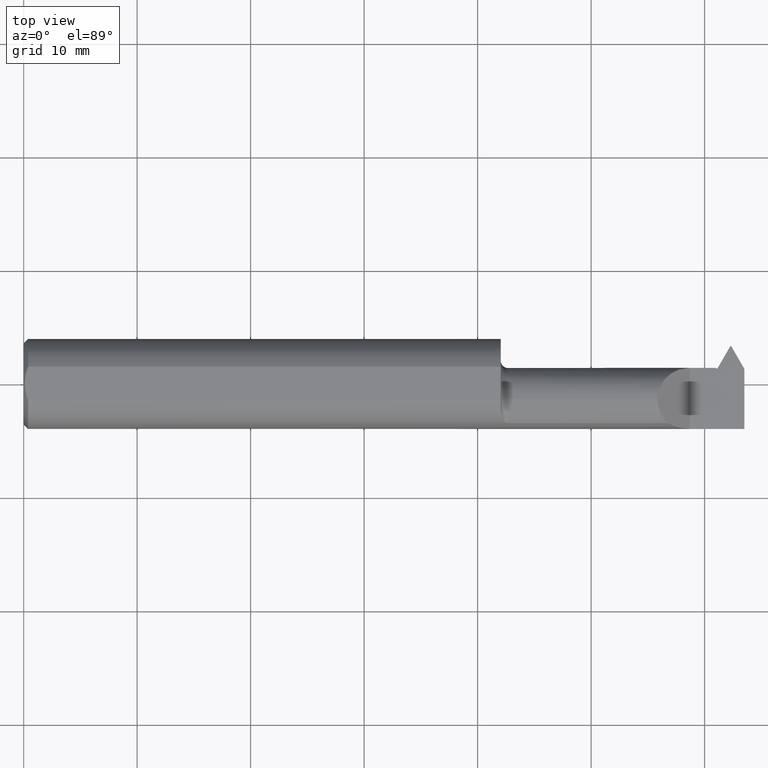
[diagram: clean part render]
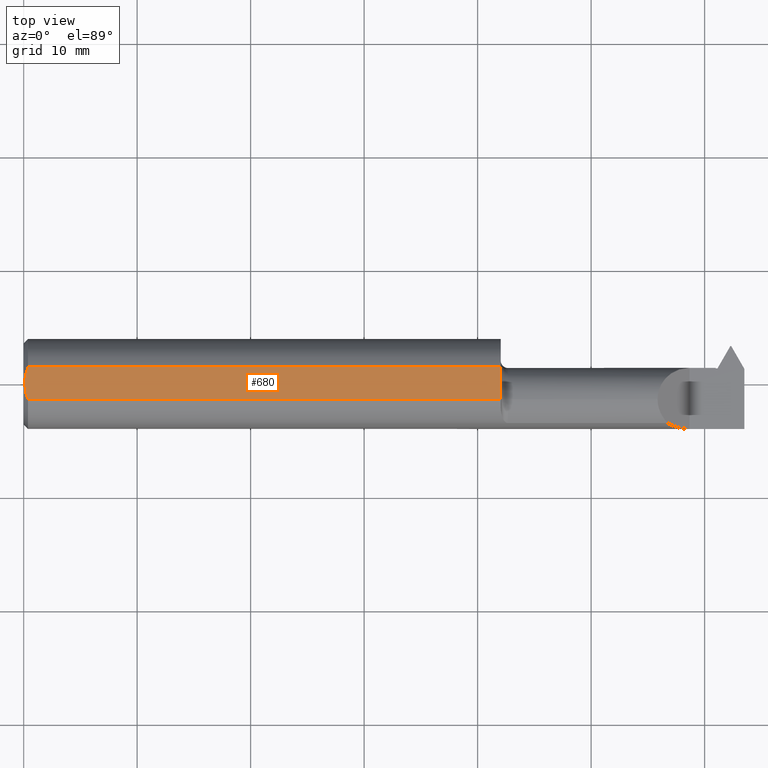
[diagram: same view with one face highlighted and labeled with its STEP entity id]
A machine part, top view. The second image highlights one B-rep face of the part: STEP entity #680.
In plain terms, the highlighted planar face has unit normal (-0, 0, -1).
Its self-contained STEP definition (entity closure, byte-faithful):
#46 = EDGE_CURVE ( 'NONE', #353, #347, #349, .T. ) ;
#56 = CARTESIAN_POINT ( 'NONE',  ( 2.500000000000000000, -0.05756040305626781983, 0.1450999999999999512 ) ) ;
#59 = VERTEX_POINT ( 'NONE', #830 ) ;
#66 = CARTESIAN_POINT ( 'NONE',  ( 0.003999999999999637526, 1.884449684559922719E-17, 0.1450999999999999512 ) ) ;
#81 = ORIENTED_EDGE ( 'NONE', *, *, #824, .F. ) ;
#88 = CARTESIAN_POINT ( 'NONE',  ( 1.655000000000000249, 0.1749999999999999889, 0.1450999999999999512 ) ) ;
#93 = CARTESIAN_POINT ( 'NONE',  ( 0.003999999999999590689, -0.009851916903761231276, 0.1450999999999999235 ) ) ;
#96 = VERTEX_POINT ( 'NONE', #152 ) ;
#118 = LINE ( 'NONE', #419, #439 ) ;
#152 = CARTESIAN_POINT ( 'NONE',  ( 0.01499999999999970281, 0.05756040305626781983, 0.1450999999999999512 ) ) ;
#176 = DIRECTION ( 'NONE',  ( -0.000000000000000000, 0.000000000000000000, -1.000000000000000000 ) ) ;
#189 = ORIENTED_EDGE ( 'NONE', *, *, #271, .T. ) ;
#191 = CARTESIAN_POINT ( 'NONE',  ( 0.003999999999999592423, 0.009855731042683129120, 0.1450999999999999790 ) ) ;
#218 = AXIS2_PLACEMENT_3D ( 'NONE', #488, #176, #479 ) ;
#267 = DIRECTION ( 'NONE',  ( 1.000000000000000000, 0.000000000000000000, 0.000000000000000000 ) ) ;
#271 = EDGE_CURVE ( 'NONE', #96, #353, #385, .T. ) ;
#276 = CARTESIAN_POINT ( 'NONE',  ( 1.655000000000000249, 0.05756040305626781289, 0.1450999999999999512 ) ) ;
#281 = LINE ( 'NONE', #56, #658 ) ;
#299 = DIRECTION ( 'NONE',  ( 0.000000000000000000, -1.000000000000000000, 0.000000000000000000 ) ) ;
#316 = LINE ( 'NONE', #88, #766 ) ;
#347 = VERTEX_POINT ( 'NONE', #705 ) ;
#349 = B_SPLINE_CURVE_WITH_KNOTS ( 'NONE', 3,
 ( #763, #93, #392, #451, #747, #685 ),
 .UNSPECIFIED., .F., .F.,
 ( 4, 2, 4 ),
 ( 0.004640589759741725780, 0.005379751224090827816, 0.006118912688439928985 ),
 .UNSPECIFIED. ) ;
#353 = VERTEX_POINT ( 'NONE', #66 ) ;
#385 = B_SPLINE_CURVE_WITH_KNOTS ( 'NONE', 3,
 ( #412, #565, #400, #857, #191, #494 ),
 .UNSPECIFIED., .F., .F.,
 ( 4, 2, 4 ),
 ( 0.003161694502929457244, 0.003901142131335591512, 0.004640589759741725780 ),
 .UNSPECIFIED. ) ;
#392 = CARTESIAN_POINT ( 'NONE',  ( 0.005011318927232567486, -0.01959047621504285061, 0.1450999999999999512 ) ) ;
#397 = ORIENTED_EDGE ( 'NONE', *, *, #46, .T. ) ;
#400 = CARTESIAN_POINT ( 'NONE',  ( 0.008823987512428013366, 0.03887788046871690911, 0.1450999999999999512 ) ) ;
#401 = VERTEX_POINT ( 'NONE', #276 ) ;
#412 = CARTESIAN_POINT ( 'NONE',  ( 0.01499999999999970281, 0.05756040305626781983, 0.1450999999999999512 ) ) ;
#419 = CARTESIAN_POINT ( 'NONE',  ( 2.500000000000000000, 0.05756040305626781983, 0.1450999999999999512 ) ) ;
#439 = VECTOR ( 'NONE', #267, 39.37007874015748143 ) ;
#451 = CARTESIAN_POINT ( 'NONE',  ( 0.008818052469296599680, -0.03886761757380381710, 0.1450999999999999512 ) ) ;
#479 = DIRECTION ( 'NONE',  ( -1.000000000000000000, 0.000000000000000000, 0.000000000000000000 ) ) ;
#487 = EDGE_CURVE ( 'NONE', #401, #59, #316, .T. ) ;
#488 = CARTESIAN_POINT ( 'NONE',  ( 0.000000000000000000, 0.1749999999999999889, 0.1450999999999999512 ) ) ;
#493 = FACE_OUTER_BOUND ( 'NONE', #605, .T. ) ;
#494 = CARTESIAN_POINT ( 'NONE',  ( 0.003999999999999637526, 1.884449684559922719E-17, 0.1450999999999999512 ) ) ;
#502 = ORIENTED_EDGE ( 'NONE', *, *, #487, .F. ) ;
#565 = CARTESIAN_POINT ( 'NONE',  ( 0.01158831187866349310, 0.04830813087846574927, 0.1450999999999999235 ) ) ;
#605 = EDGE_LOOP ( 'NONE', ( #502, #81, #189, #397, #826 ) ) ;
#658 = VECTOR ( 'NONE', #938, 39.37007874015748143 ) ;
#680 = ADVANCED_FACE ( 'NONE', ( #493 ), #712, .F. ) ;
#685 = CARTESIAN_POINT ( 'NONE',  ( 0.01499999999999970975, -0.05756040305626781983, 0.1450999999999999512 ) ) ;
#705 = CARTESIAN_POINT ( 'NONE',  ( 0.01499999999999970975, -0.05756040305626781983, 0.1450999999999999512 ) ) ;
#712 = PLANE ( 'NONE',  #218 ) ;
#747 = CARTESIAN_POINT ( 'NONE',  ( 0.01161840624095520323, -0.04838974479540041063, 0.1450999999999999790 ) ) ;
#763 = CARTESIAN_POINT ( 'NONE',  ( 0.003999999999999637526, 1.884449684559922719E-17, 0.1450999999999999512 ) ) ;
#766 = VECTOR ( 'NONE', #299, 39.37007874015748143 ) ;
#807 = EDGE_CURVE ( 'NONE', #59, #347, #281, .T. ) ;
#824 = EDGE_CURVE ( 'NONE', #96, #401, #118, .T. ) ;
#826 = ORIENTED_EDGE ( 'NONE', *, *, #807, .F. ) ;
#830 = CARTESIAN_POINT ( 'NONE',  ( 1.655000000000000249, -0.05756040305626783371, 0.1450999999999999512 ) ) ;
#857 = CARTESIAN_POINT ( 'NONE',  ( 0.005030132703184393185, 0.01970541148932063516, 0.1450999999999999512 ) ) ;
#938 = DIRECTION ( 'NONE',  ( -1.000000000000000000, -0.000000000000000000, -0.000000000000000000 ) ) ;